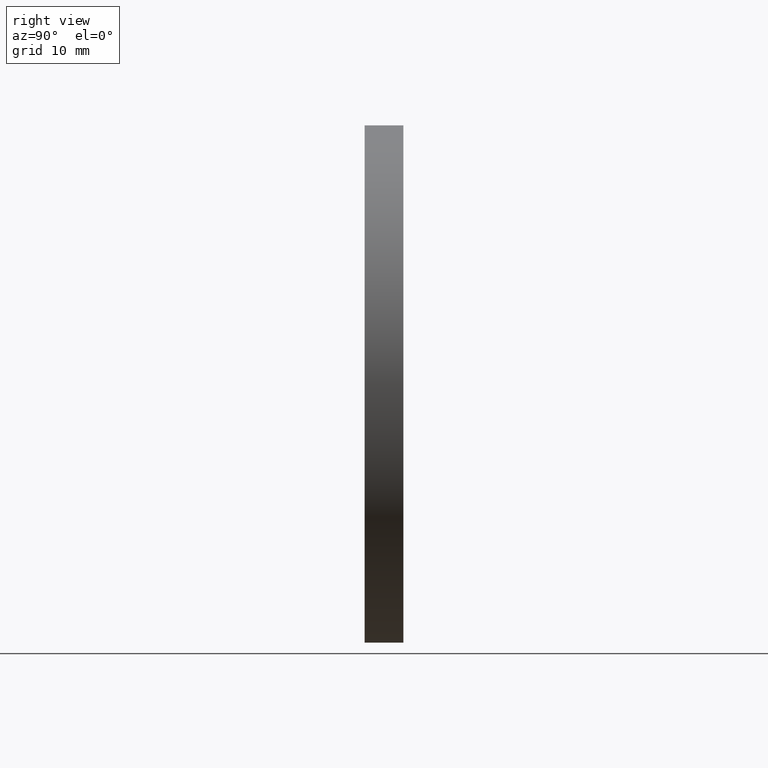
[diagram: clean part render]
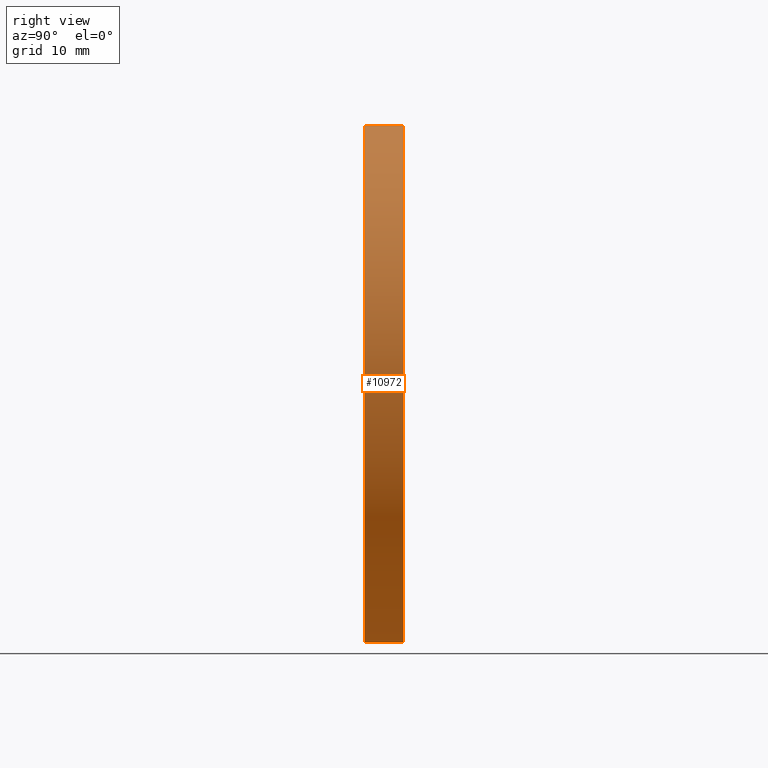
[diagram: same view with one face highlighted and labeled with its STEP entity id]
A machine part, right view. The second image highlights one B-rep face of the part: STEP entity #10972.
In plain terms, the highlighted cylindrical surface (partial cylindrical patch) has radius 40 mm, axis along (-0, -1, -0).
Its self-contained STEP definition (entity closure, byte-faithful):
#207 = ORIENTED_EDGE ( 'NONE', *, *, #4441, .F. ) ;
#685 = CARTESIAN_POINT ( 'NONE',  ( 4.898587196589413026E-15, 0.000000000000000000, 40.00000000000000000 ) ) ;
#687 = LINE ( 'NONE', #1032, #6341 ) ;
#929 = EDGE_CURVE ( 'NONE', #10156, #5188, #10719, .T. ) ;
#1032 = CARTESIAN_POINT ( 'NONE',  ( 0.000000000000000000, 6.000000000000000000, -40.00000000000000000 ) ) ;
#1141 = DIRECTION ( 'NONE',  ( -0.000000000000000000, -1.000000000000000000, -0.000000000000000000 ) ) ;
#1724 = AXIS2_PLACEMENT_3D ( 'NONE', #5793, #4557, #6832 ) ;
#1795 = CARTESIAN_POINT ( 'NONE',  ( 4.898587196589413026E-15, 6.000000000000000000, 40.00000000000000000 ) ) ;
#2191 = CARTESIAN_POINT ( 'NONE',  ( 0.000000000000000000, 6.000000000000000000, 0.000000000000000000 ) ) ;
#2986 = CIRCLE ( 'NONE', #11800, 40.00000000000000000 ) ;
#3037 = CARTESIAN_POINT ( 'NONE',  ( 4.898587196589413026E-15, 6.000000000000000000, 40.00000000000000000 ) ) ;
#3170 = ORIENTED_EDGE ( 'NONE', *, *, #9267, .T. ) ;
#3485 = CYLINDRICAL_SURFACE ( 'NONE', #9977, 40.00000000000000000 ) ;
#3707 = ORIENTED_EDGE ( 'NONE', *, *, #12412, .F. ) ;
#4113 = VERTEX_POINT ( 'NONE', #5909 ) ;
#4441 = EDGE_CURVE ( 'NONE', #4113, #9202, #687, .T. ) ;
#4557 = DIRECTION ( 'NONE',  ( 0.000000000000000000, 1.000000000000000000, 0.000000000000000000 ) ) ;
#5188 = VERTEX_POINT ( 'NONE', #685 ) ;
#5413 = EDGE_LOOP ( 'NONE', ( #3707, #8564, #3170, #207 ) ) ;
#5793 = CARTESIAN_POINT ( 'NONE',  ( 0.000000000000000000, 6.000000000000000000, 0.000000000000000000 ) ) ;
#5909 = CARTESIAN_POINT ( 'NONE',  ( 0.000000000000000000, 6.000000000000000000, -40.00000000000000000 ) ) ;
#6341 = VECTOR ( 'NONE', #12092, 1000.000000000000000 ) ;
#6832 = DIRECTION ( 'NONE',  ( 0.000000000000000000, 0.000000000000000000, 1.000000000000000000 ) ) ;
#7237 = CARTESIAN_POINT ( 'NONE',  ( 0.000000000000000000, 0.000000000000000000, 0.000000000000000000 ) ) ;
#8249 = DIRECTION ( 'NONE',  ( 0.000000000000000000, 0.000000000000000000, 1.000000000000000000 ) ) ;
#8564 = ORIENTED_EDGE ( 'NONE', *, *, #929, .T. ) ;
#8678 = CARTESIAN_POINT ( 'NONE',  ( 0.000000000000000000, 0.000000000000000000, -40.00000000000000000 ) ) ;
#9202 = VERTEX_POINT ( 'NONE', #8678 ) ;
#9267 = EDGE_CURVE ( 'NONE', #5188, #9202, #2986, .T. ) ;
#9533 = DIRECTION ( 'NONE',  ( 0.000000000000000000, 1.000000000000000000, 0.000000000000000000 ) ) ;
#9977 = AXIS2_PLACEMENT_3D ( 'NONE', #2191, #1141, #10952 ) ;
#10156 = VERTEX_POINT ( 'NONE', #1795 ) ;
#10719 = LINE ( 'NONE', #3037, #12780 ) ;
#10952 = DIRECTION ( 'NONE',  ( 0.000000000000000000, 0.000000000000000000, -1.000000000000000000 ) ) ;
#10972 = ADVANCED_FACE ( 'NONE', ( #12212 ), #3485, .T. ) ;
#11800 = AXIS2_PLACEMENT_3D ( 'NONE', #7237, #9533, #8249 ) ;
#12092 = DIRECTION ( 'NONE',  ( -0.000000000000000000, -1.000000000000000000, -0.000000000000000000 ) ) ;
#12212 = FACE_OUTER_BOUND ( 'NONE', #5413, .T. ) ;
#12412 = EDGE_CURVE ( 'NONE', #10156, #4113, #14087, .T. ) ;
#12780 = VECTOR ( 'NONE', #12936, 1000.000000000000000 ) ;
#12936 = DIRECTION ( 'NONE',  ( -0.000000000000000000, -1.000000000000000000, -0.000000000000000000 ) ) ;
#14087 = CIRCLE ( 'NONE', #1724, 40.00000000000000000 ) ;